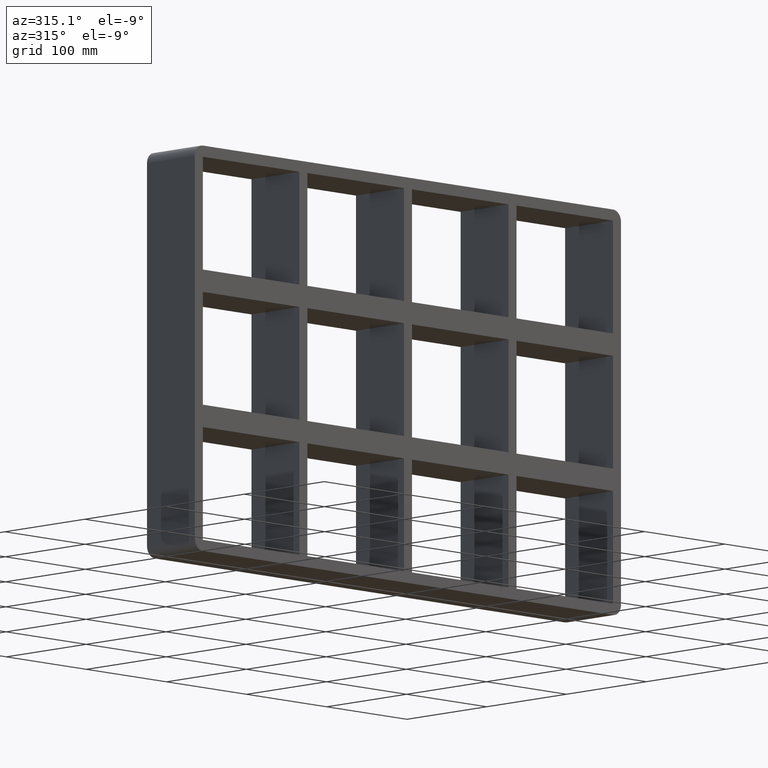
[diagram: clean part render]
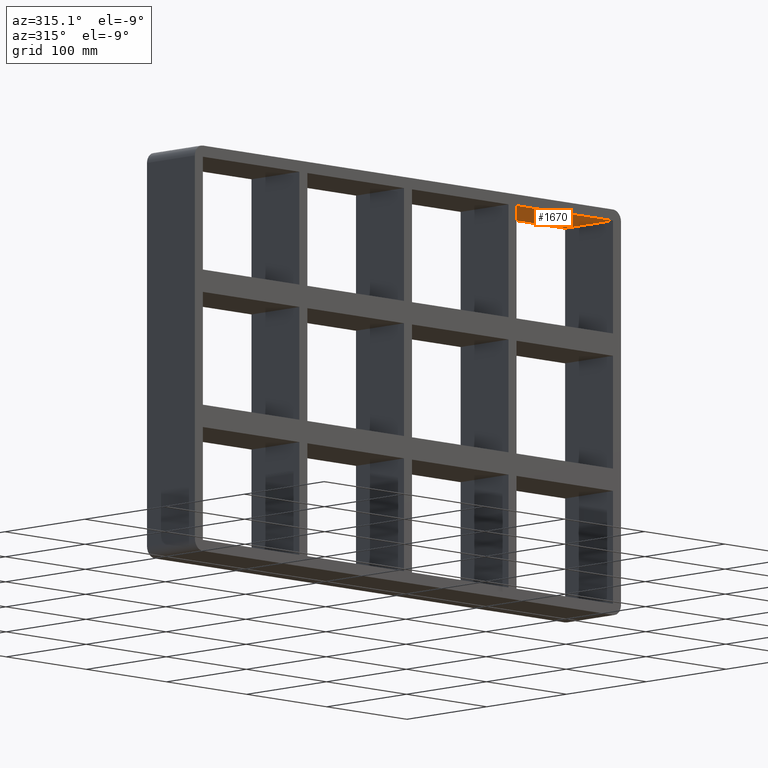
[diagram: same view with one face highlighted and labeled with its STEP entity id]
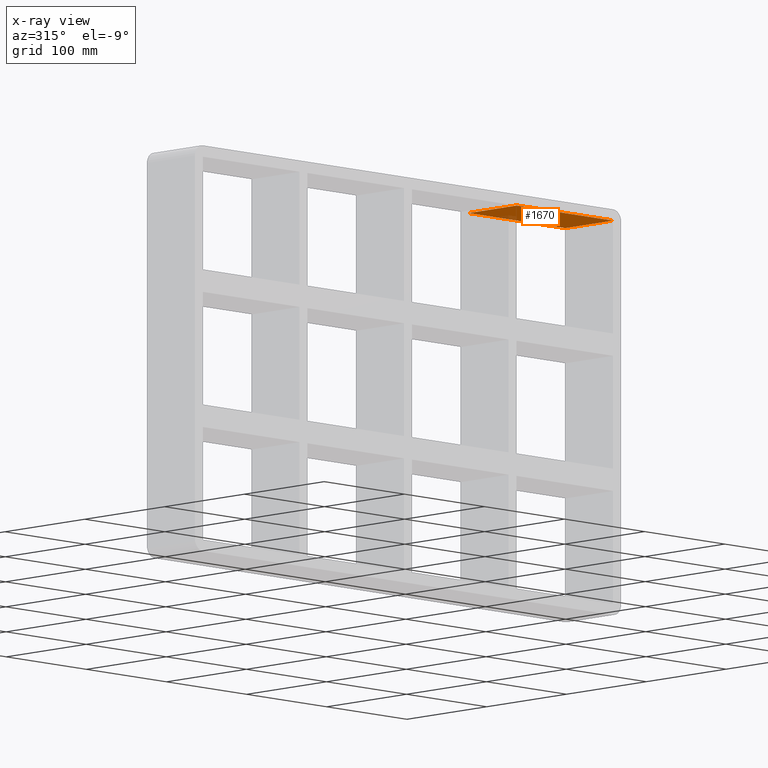
[diagram: x-ray of the same camera — body ghosted, the highlighted face saturated]
A machine part, auxiliary view. The second image highlights one B-rep face of the part: STEP entity #1670.
The next image is the same camera in x-ray: the body ghosted, the highlighted face saturated — about 4% of this face is hidden behind the body in this view.
In plain terms, the highlighted planar face has unit normal (0, 0, 1).
Its self-contained STEP definition (entity closure, byte-faithful):
#456=CARTESIAN_POINT('',(256.00000000000006,-3.0,171.50000000000003));
#457=VERTEX_POINT('',#456);
#464=CARTESIAN_POINT('',(256.00000000000006,57.0,171.50000000000003));
#465=VERTEX_POINT('',#464);
#466=CARTESIAN_POINT('',(256.00000000000006,-3.0,171.50000000000003));
#467=DIRECTION('',(0.0,1.0,0.0));
#468=VECTOR('',#467,60.0);
#469=LINE('',#466,#468);
#470=EDGE_CURVE('',#457,#465,#469,.T.);
#518=CARTESIAN_POINT('',(135.50000000000728,57.0,171.50000000000003));
#519=VERTEX_POINT('',#518);
#526=CARTESIAN_POINT('',(135.50000000000728,-3.0,171.50000000000003));
#527=VERTEX_POINT('',#526);
#528=CARTESIAN_POINT('',(135.50000000000728,-3.0,171.50000000000003));
#529=DIRECTION('',(0.0,1.0,0.0));
#530=VECTOR('',#529,60.000000000000007);
#531=LINE('',#528,#530);
#532=EDGE_CURVE('',#527,#519,#531,.T.);
#792=CARTESIAN_POINT('',(256.0,57.0,171.50000000000003));
#793=DIRECTION('',(-1.0,0.0,0.0));
#794=VECTOR('',#793,120.49999999999272);
#795=LINE('',#792,#794);
#796=EDGE_CURVE('',#465,#519,#795,.T.);
#1493=CARTESIAN_POINT('',(135.50000000000728,-3.0,171.50000000000003));
#1494=DIRECTION('',(1.0,0.0,0.0));
#1495=VECTOR('',#1494,120.49999999999272);
#1496=LINE('',#1493,#1495);
#1497=EDGE_CURVE('',#527,#457,#1496,.T.);
#1659=CARTESIAN_POINT('',(-256.00000000000006,0.0,171.50000000000003));
#1660=DIRECTION('',(0.0,0.0,1.0));
#1661=DIRECTION('',(1.0,0.0,0.0));
#1662=AXIS2_PLACEMENT_3D('',#1659,#1660,#1661);
#1663=PLANE('',#1662);
#1664=ORIENTED_EDGE('',*,*,#532,.T.);
#1665=ORIENTED_EDGE('',*,*,#796,.F.);
#1666=ORIENTED_EDGE('',*,*,#470,.F.);
#1667=ORIENTED_EDGE('',*,*,#1497,.F.);
#1668=EDGE_LOOP('',(#1664,#1665,#1666,#1667));
#1669=FACE_OUTER_BOUND('',#1668,.T.);
#1670=ADVANCED_FACE('',(#1669),#1663,.F.);